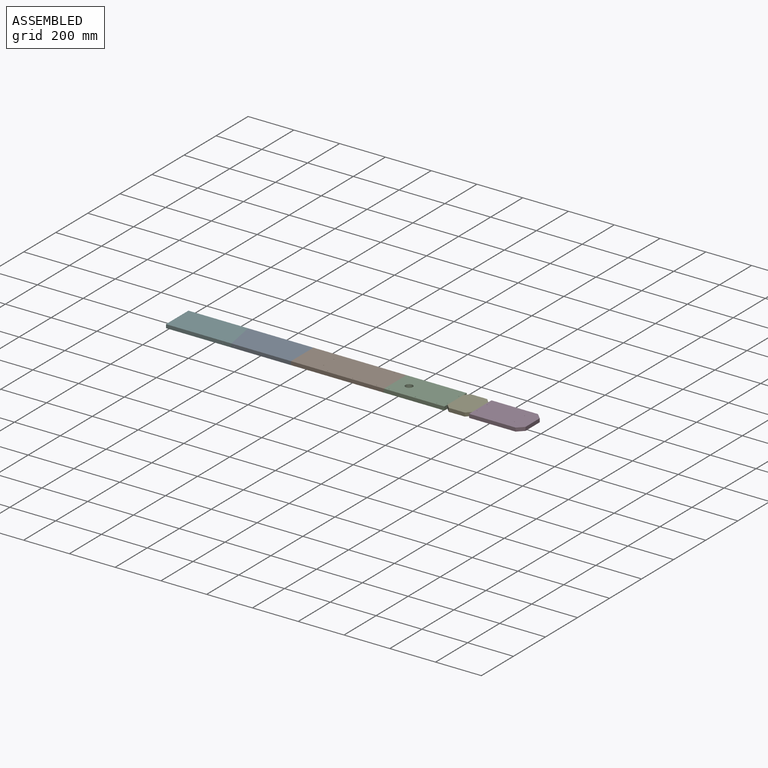
[diagram: assembled view]
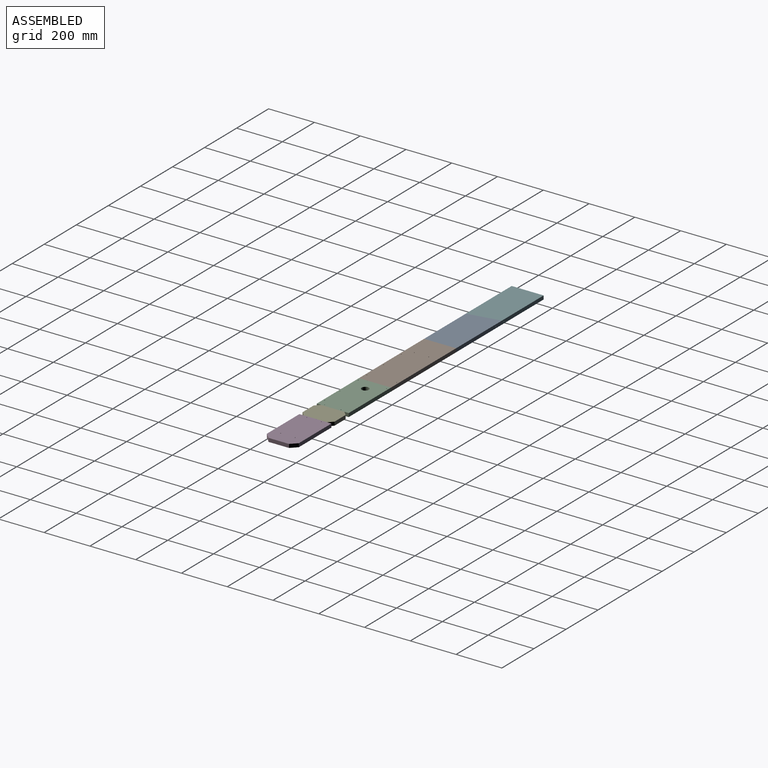
[diagram: assembled view, second angle]
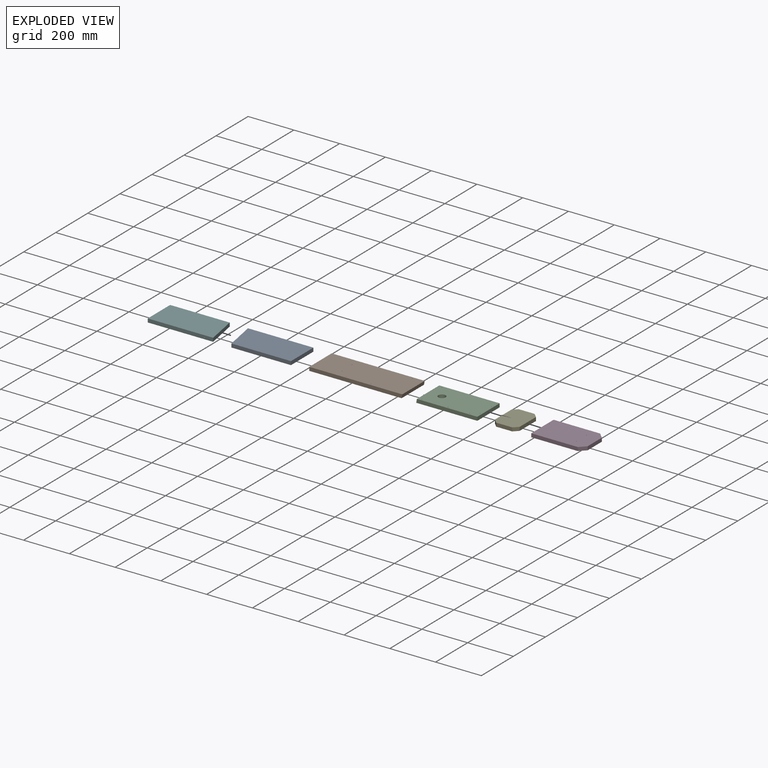
[diagram: exploded view]
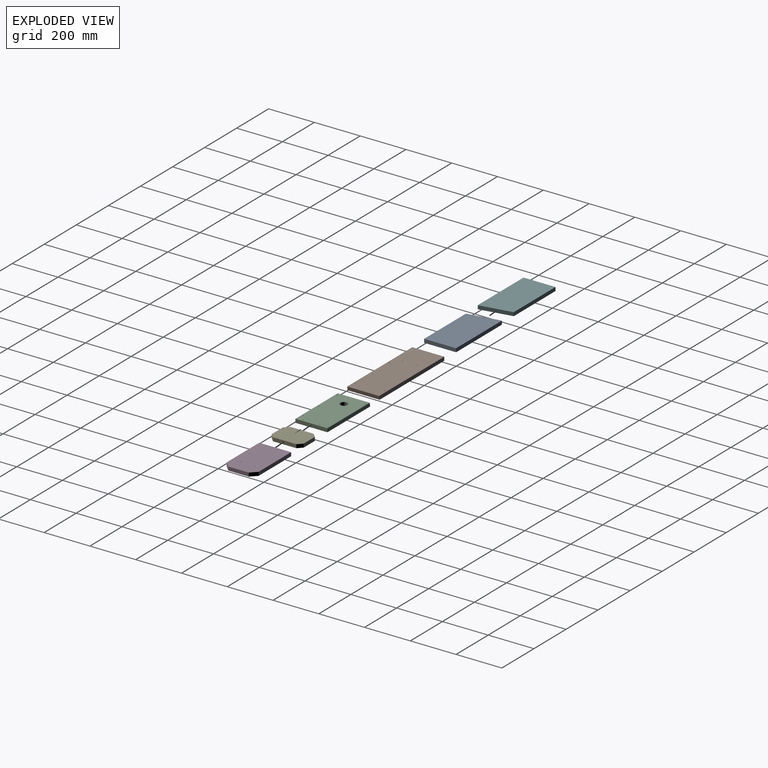
[diagram: exploded view, second angle]
ASSEMBLY  parts=6 mates=5
PART A: 7 faces, bbox 285.8x139.7x15.9 mm
  f0: plane 260.35x15.88mm, normal (0,1,0), area 4125.1mm2, adj f1,f3,f4,f5,f6
  f1: plane 139.7x15.88mm, normal (-1,0,0), area 2217.7mm2, adj f0,f2,f4,f5
  f2: plane 285.75x15.88mm, normal (0,-1,0), area 4528.4mm2, adj f1,f3,f4,f5,f6
  f3: plane 139.7x25.4mm, normal (0.98,0.18,0), area 2254.1mm2, adj f0,f2,f4,f5
  f4: plane 285.75x139.7mm, normal (0,0,1), area 38145.1mm2, adj f0,f1,f2,f3
  f5: plane 285.75x139.7mm, normal (0,0,-1), area 38145.1mm2, adj f0,f1,f2,f3
  f6: cylinder r=1.59mm len=139.7mm, axis (0,1,0), area 1393.4mm2, adj f0,f2
PART B: 12 faces, bbox 406.4x139.7x15.9 mm
  f0: plane 139.7x15.88mm, normal (-1,0,0), area 2217.7mm2, adj f1,f8,f10,f11
  f1: plane 406.4x15.88mm, normal (0,-1,0), area 6428.7mm2, adj f0,f2,f10,f11
  f2: plane 139.7x15.88mm, normal (0.98,0,-0.18), area 2254.1mm2, adj f1,f8,f10,f11
  f3: cylinder r=1.59mm len=15.88mm, axis (0,0,-1), area 158.3mm2, adj f10,f11
  f4: cylinder r=1.59mm len=15.88mm, axis (0,0,-1), area 158.3mm2, adj f10,f11
  f5: cylinder r=1.59mm len=15.88mm, axis (0,0,-1), area 158.3mm2, adj f10,f11
  f6: cylinder r=1.59mm len=15.88mm, axis (0,0,-1), area 158.3mm2, adj f10,f11
  f7: cylinder r=1.59mm len=15.88mm, axis (0,0,-1), area 158.3mm2, adj f10,f11
  f8: plane 406.4x15.88mm, normal (0,1,0), area 6428.7mm2, adj f0,f2,f10,f11
  f9: cylinder r=1.59mm len=15.88mm, axis (0,0,-1), area 158.3mm2, adj f10,f11
  f10: plane 406.4x139.7mm, normal (0,0,1), area 56726.6mm2, adj f0,f1,f2,f3,f4,f5,f6,f7
  f11: plane 403.52x139.7mm, normal (0,0,-1), area 56323.5mm2, adj f0,f1,f2,f3,f4,f5,f6,f7
PART C: 13 faces, bbox 266.7x139.7x15.9 mm
  f0: plane 266.7x15.88mm, normal (0,1,0), area 4211mm2, adj f1,f10,f11,f12
  f1: plane 139.7x15.88mm, normal (-1,0,0), area 2217.7mm2, adj f0,f2,f11,f12
  f2: plane 266.7x15.88mm, normal (0,-1,0), area 4211mm2, adj f1,f10,f11,f12
  f3: cylinder r=15.88mm len=31.75mm, axis (0,0,-1), area 1583.5mm2, adj f11,f12
  f4: cylinder r=1.59mm len=15.88mm, axis (0,0,-1), area 158.3mm2, adj f11,f12
  f5: cylinder r=1.59mm len=15.88mm, axis (0,0,-1), area 158.3mm2, adj f11,f12
  f6: cylinder r=1.59mm len=15.88mm, axis (0,0,-1), area 158.3mm2, adj f11,f12
  f7: cylinder r=1.59mm len=15.88mm, axis (0,0,-1), area 158.3mm2, adj f11,f12
  f8: cylinder r=1.59mm len=15.88mm, axis (0,0,-1), area 158.3mm2, adj f11,f12
  f9: cylinder r=1.59mm len=15.88mm, axis (0,0,-1), area 158.3mm2, adj f11,f12
  f10: plane 139.7x15.88mm, normal (0.98,0,0.18), area 2254.1mm2, adj f0,f2,f11,f12
  f11: plane 263.82x139.7mm, normal (0,0,1), area 36015.7mm2, adj f0,f1,f2,f3,f4,f5,f6,f7
  f12: plane 266.7x139.7mm, normal (0,0,-1), area 36418.8mm2, adj f0,f1,f2,f3,f4,f5,f6,f7
PART D: 12 faces, bbox 228.6x139.7x15.9 mm
  f0: plane 203.2x15.88mm, normal (0,1,0), area 3225.8mm2, adj f1,f8,f10,f11
  f1: plane 139.7x15.88mm, normal (-1,0,0), area 2217.7mm2, adj f0,f2,f10,f11
  f2: plane 203.2x15.88mm, normal (0,-1,0), area 3225.8mm2, adj f1,f3,f10,f11
  f3: plane 25.4x25.4mm, normal (0.71,-0.71,0), area 570.2mm2, adj f2,f4,f10,f11
  f4: plane 88.9x15.88mm, normal (1,0,0), area 1411.3mm2, adj f3,f8,f10,f11
  f5: cylinder r=1.59mm len=15.88mm, axis (0,0,-1), area 158.3mm2, adj f10,f11
  f6: cylinder r=1.59mm len=15.88mm, axis (0,0,-1), area 158.3mm2, adj f10,f11
  f7: cylinder r=1.59mm len=15.88mm, axis (0,0,-1), area 158.3mm2, adj f10,f11
  f8: plane 25.4x25.4mm, normal (0.71,0.71,0), area 570.2mm2, adj f0,f4,f10,f11
  f9: cylinder r=1.59mm len=15.88mm, axis (0,0,-1), area 158.3mm2, adj f10,f11
  f10: plane 228.6x139.7mm, normal (0,0,1), area 31258.6mm2, adj f0,f1,f2,f3,f4,f5,f6,f7
  f11: plane 228.6x139.7mm, normal (0,0,-1), area 31258.6mm2, adj f0,f1,f2,f3,f4,f5,f6,f7
PART E: 10 faces, bbox 108x139.7x15.9 mm
  f0: plane 101.6x15.88mm, normal (-1,0,0), area 1612.9mm2, adj f4,f5,f6,f8
  f1: plane 69.85x15.88mm, normal (0,-1,0), area 1108.9mm2, adj f4,f5,f8,f9
  f2: plane 101.6x15.88mm, normal (1,0,0), area 1612.9mm2, adj f4,f5,f7,f9
  f3: plane 69.85x15.88mm, normal (0,1,0), area 1108.9mm2, adj f4,f5,f6,f7
  f4: plane 139.7x107.95mm, normal (0,0,1), area 14354.8mm2, adj f0,f1,f2,f3,f6,f7,f8,f9
  f5: plane 139.7x107.95mm, normal (0,0,-1), area 14354.8mm2, adj f0,f1,f2,f3,f6,f7,f8,f9
  f6: plane 19.05x19.05mm, normal (-0.71,0.71,0), area 427.7mm2, adj f0,f3,f4,f5
  f7: plane 19.05x19.05mm, normal (0.71,0.71,0), area 427.7mm2, adj f2,f3,f4,f5
  f8: plane 19.05x19.05mm, normal (-0.71,-0.71,0), area 427.7mm2, adj f0,f1,f4,f5
  f9: plane 19.05x19.05mm, normal (0.71,-0.71,0), area 427.7mm2, adj f1,f2,f4,f5
PART F: same geometry as A
PLACE A rot(axis=(0,0,-1),180deg) t=(4.05,-164.26,247.86)mm
PLACE B t=(-127.04,-145.33,247.86)mm
PLACE C rot(axis=(0,0,1),180deg) t=(680.4,-328.98,247.86)mm
PLACE D rot(axis=(1,0,0),180deg) t=(433.1,-227.33,263.74)mm
PLACE E rot(axis=(1,0,0),180deg) t=(674.27,2.59,263.74)mm
PLACE F t=(-542.05,29.73,247.86)mm
MATE fastened E.f2 <-> D.f1  axis (1,0,0) through (782.22,-67.26,255.8)mm
MATE fastened E.f0 <-> C.f1  axis (-1,0,0) through (674.27,-67.26,255.8)mm
MATE fastened F.f3 <-> A.f3  axis (0.98,0.18,0) through (-269,-67.26,255.8)mm
MATE fastened C.f10 <-> B.f2  axis (-0.98,0,0.18) through (409.01,-67.26,255.8)mm
MATE fastened A.f1 <-> B.f0  axis (1,0,0) through (4.05,-67.26,255.8)mm
